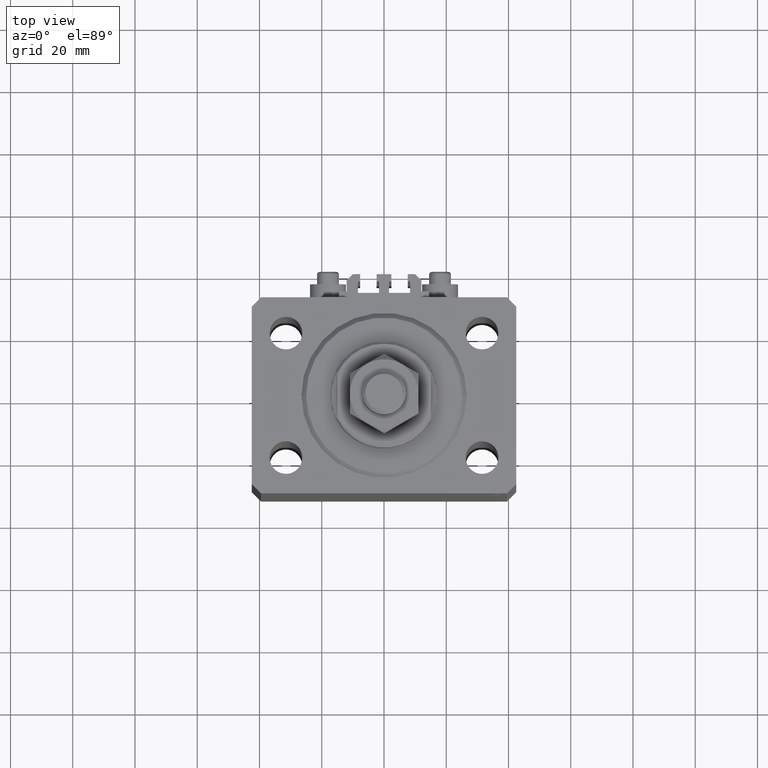
[diagram: clean part render]
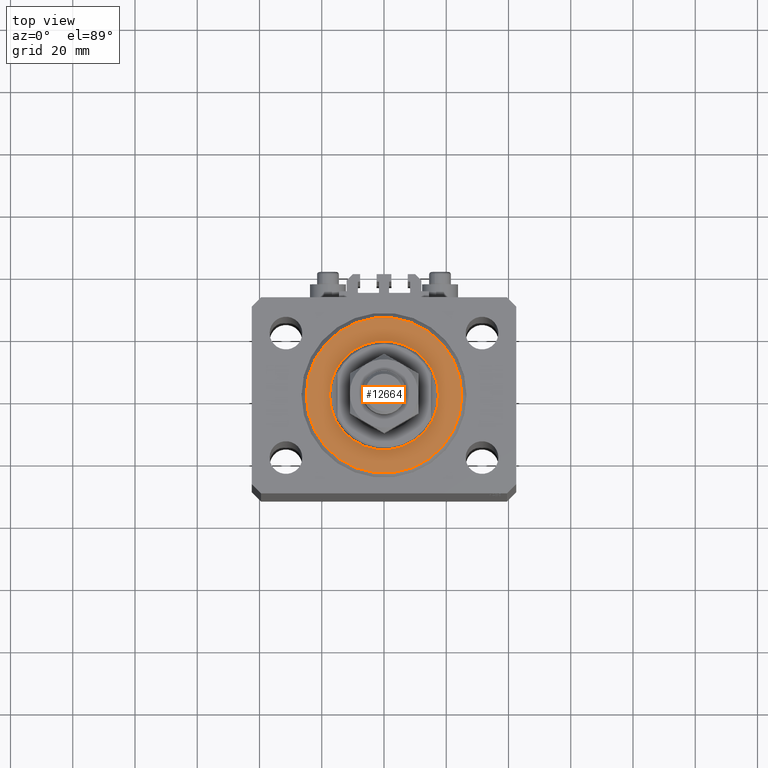
[diagram: same view with one face highlighted and labeled with its STEP entity id]
A machine part, top view. The second image highlights one B-rep face of the part: STEP entity #12664.
In plain terms, the highlighted planar face has unit normal (0, 0, -1).
Its self-contained STEP definition (entity closure, byte-faithful):
#610 = EDGE_LOOP ( 'NONE', ( #13887, #22705 ) ) ;
#923 = EDGE_CURVE ( 'NONE', #4216, #2510, #19109, .T. ) ;
#1867 = CARTESIAN_POINT ( 'NONE',  ( 17.50000000000000000, 0.000000000000000000, 2.168404344971008868E-16 ) ) ;
#2510 = VERTEX_POINT ( 'NONE', #1867 ) ;
#3223 = DIRECTION ( 'NONE',  ( -0.000000000000000000, -0.000000000000000000, -1.000000000000000000 ) ) ;
#4216 = VERTEX_POINT ( 'NONE', #4874 ) ;
#4371 = ORIENTED_EDGE ( 'NONE', *, *, #37533, .T. ) ;
#4874 = CARTESIAN_POINT ( 'NONE',  ( -17.50000000000000000, 2.143131898507868643E-15, 2.168404344971008868E-16 ) ) ;
#5042 = EDGE_LOOP ( 'NONE', ( #4371, #12452 ) ) ;
#7379 = CARTESIAN_POINT ( 'NONE',  ( 24.99999999999995026, 0.000000000000000000, 0.000000000000000000 ) ) ;
#11019 = FACE_BOUND ( 'NONE', #610, .T. ) ;
#12452 = ORIENTED_EDGE ( 'NONE', *, *, #13549, .T. ) ;
#12664 = ADVANCED_FACE ( 'NONE', ( #11019, #14478 ), #14233, .F. ) ;
#13444 = CIRCLE ( 'NONE', #42717, 17.50000000000000000 ) ;
#13549 = EDGE_CURVE ( 'NONE', #14961, #36915, #47918, .T. ) ;
#13887 = ORIENTED_EDGE ( 'NONE', *, *, #36539, .T. ) ;
#14233 = PLANE ( 'NONE',  #38434 ) ;
#14307 = DIRECTION ( 'NONE',  ( -0.000000000000000000, -0.000000000000000000, -1.000000000000000000 ) ) ;
#14478 = FACE_OUTER_BOUND ( 'NONE', #5042, .T. ) ;
#14961 = VERTEX_POINT ( 'NONE', #31556 ) ;
#18311 = AXIS2_PLACEMENT_3D ( 'NONE', #40629, #41374, #41127 ) ;
#19109 = CIRCLE ( 'NONE', #18311, 17.50000000000000000 ) ;
#21997 = CARTESIAN_POINT ( 'NONE',  ( 0.000000000000000000, 0.000000000000000000, 0.000000000000000000 ) ) ;
#22705 = ORIENTED_EDGE ( 'NONE', *, *, #923, .T. ) ;
#26591 = AXIS2_PLACEMENT_3D ( 'NONE', #32617, #14307, #36554 ) ;
#30072 = CARTESIAN_POINT ( 'NONE',  ( 0.000000000000000000, 0.000000000000000000, 0.000000000000000000 ) ) ;
#31556 = CARTESIAN_POINT ( 'NONE',  ( -24.99999999999995026, 3.153465507804431248E-15, 0.000000000000000000 ) ) ;
#32617 = CARTESIAN_POINT ( 'NONE',  ( 0.000000000000000000, 0.000000000000000000, 0.000000000000000000 ) ) ;
#36539 = EDGE_CURVE ( 'NONE', #2510, #4216, #13444, .T. ) ;
#36554 = DIRECTION ( 'NONE',  ( 1.000000000000000000, 0.000000000000000000, 0.000000000000000000 ) ) ;
#36915 = VERTEX_POINT ( 'NONE', #7379 ) ;
#37145 = DIRECTION ( 'NONE',  ( 0.000000000000000000, 0.000000000000000000, 1.000000000000000000 ) ) ;
#37533 = EDGE_CURVE ( 'NONE', #36915, #14961, #38782, .T. ) ;
#37969 = DIRECTION ( 'NONE',  ( 1.000000000000000000, 0.000000000000000000, -0.000000000000000000 ) ) ;
#38002 = AXIS2_PLACEMENT_3D ( 'NONE', #21997, #3223, #48488 ) ;
#38434 = AXIS2_PLACEMENT_3D ( 'NONE', #30072, #44670, #37969 ) ;
#38782 = CIRCLE ( 'NONE', #38002, 24.99999999999995026 ) ;
#40629 = CARTESIAN_POINT ( 'NONE',  ( 0.000000000000000000, 0.000000000000000000, 0.000000000000000000 ) ) ;
#41127 = DIRECTION ( 'NONE',  ( 1.000000000000000000, 0.000000000000000000, 0.000000000000000000 ) ) ;
#41130 = CARTESIAN_POINT ( 'NONE',  ( 0.000000000000000000, 0.000000000000000000, 0.000000000000000000 ) ) ;
#41374 = DIRECTION ( 'NONE',  ( 0.000000000000000000, 0.000000000000000000, 1.000000000000000000 ) ) ;
#42717 = AXIS2_PLACEMENT_3D ( 'NONE', #41130, #37145, #48809 ) ;
#44670 = DIRECTION ( 'NONE',  ( 0.000000000000000000, 0.000000000000000000, 1.000000000000000000 ) ) ;
#47918 = CIRCLE ( 'NONE', #26591, 24.99999999999995026 ) ;
#48488 = DIRECTION ( 'NONE',  ( 1.000000000000000000, 0.000000000000000000, 0.000000000000000000 ) ) ;
#48809 = DIRECTION ( 'NONE',  ( 1.000000000000000000, 0.000000000000000000, 0.000000000000000000 ) ) ;